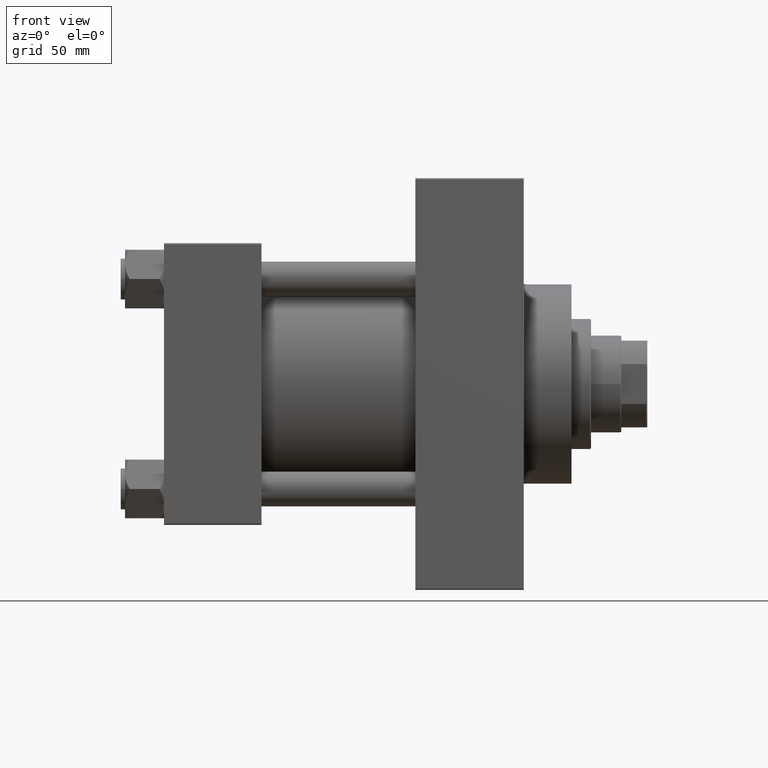
[diagram: clean part render]
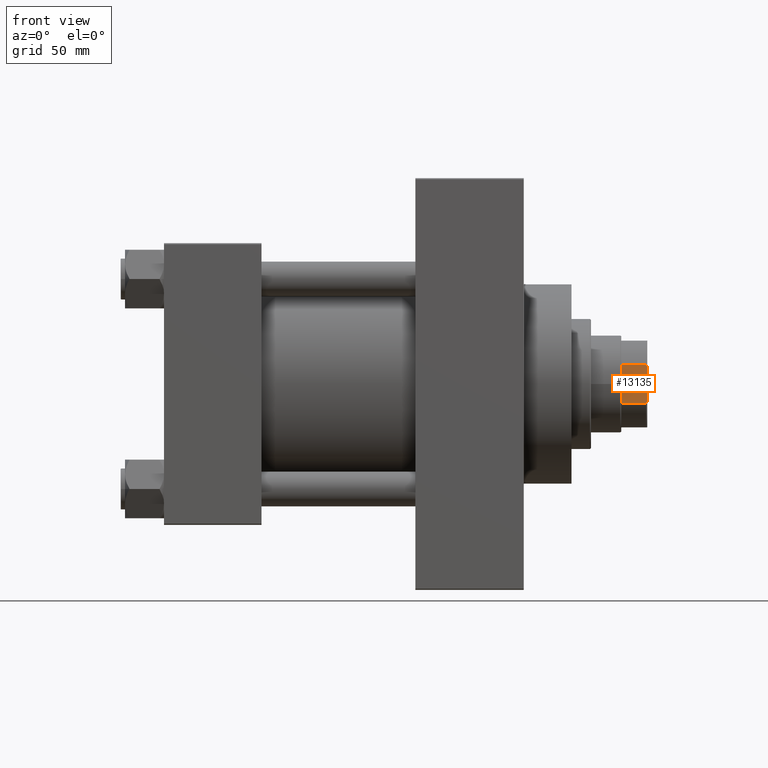
[diagram: same view with one face highlighted and labeled with its STEP entity id]
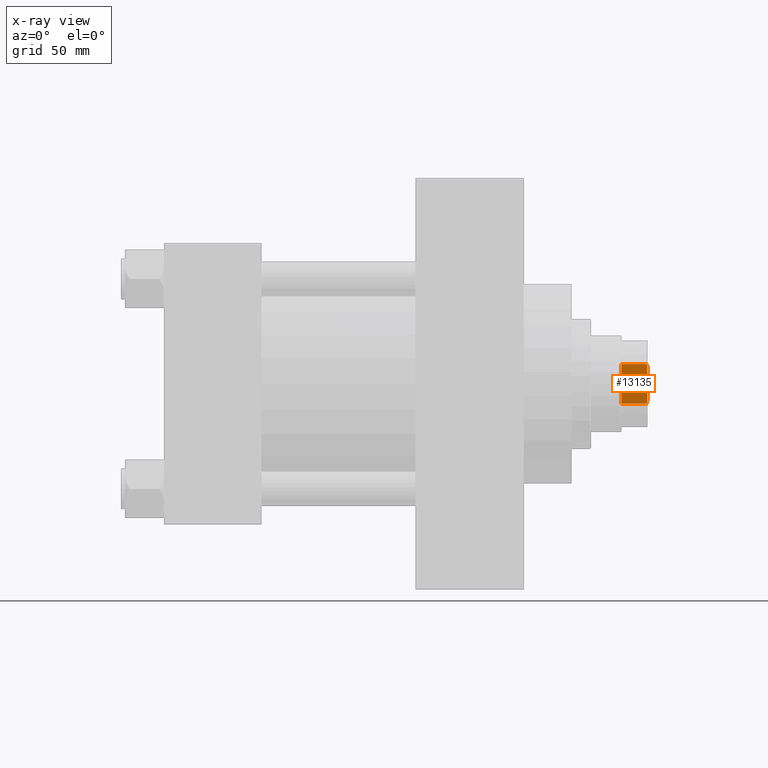
[diagram: x-ray of the same camera — body ghosted, the highlighted face saturated]
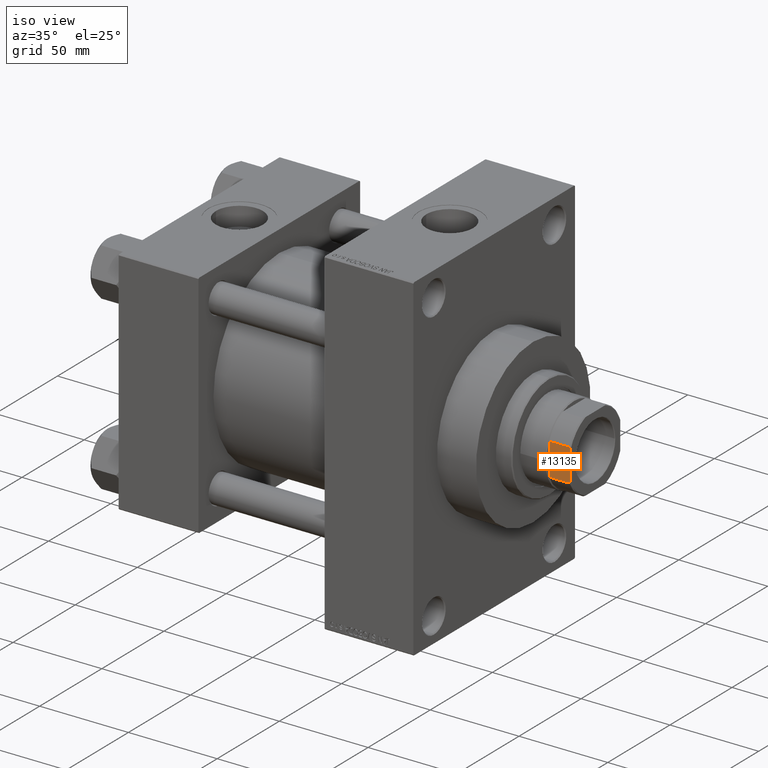
[diagram: same view with one face highlighted and labeled with its STEP entity id]
A machine part, front view. The second image highlights one B-rep face of the part: STEP entity #13135.
The next image is the same camera in x-ray: the body ghosted, the highlighted face saturated — about 0% of this face is hidden behind the body in this view.
A second angle (iso view) of the same face is appended — the face is thin or edge-on in the first view.
In plain terms, the highlighted planar face has unit normal (0, 1, 0).
Its self-contained STEP definition (entity closure, byte-faithful):
#482 = VERTEX_POINT ( 'NONE', #21089 ) ;
#824 = VECTOR ( 'NONE', #40967, 1000.000000000000000 ) ;
#1165 = PLANE ( 'NONE',  #47085 ) ;
#1406 = EDGE_CURVE ( 'NONE', #482, #37935, #25539, .T. ) ;
#2500 = VERTEX_POINT ( 'NONE', #32085 ) ;
#3349 = LINE ( 'NONE', #3860, #8420 ) ;
#3751 = CARTESIAN_POINT ( 'NONE',  ( 20.00000000000000000, -7.889866919029643100, 178.0000000000000284 ) ) ;
#3860 = CARTESIAN_POINT ( 'NONE',  ( 19.99999999999999289, -9.165151389911693869, -0.001000000000001000089 ) ) ;
#5212 = DIRECTION ( 'NONE',  ( -1.000000000000000000, -1.734723475976806848E-16, 0.000000000000000000 ) ) ;
#8420 = VECTOR ( 'NONE', #27044, 1000.000000000000000 ) ;
#8943 = EDGE_LOOP ( 'NONE', ( #12876, #15469, #36481, #24664, #36328, #48056 ) ) ;
#10509 = VECTOR ( 'NONE', #11046, 1000.000000000000000 ) ;
#11046 = DIRECTION ( 'NONE',  ( -0.000000000000000000, -0.000000000000000000, 1.000000000000000000 ) ) ;
#11940 = EDGE_CURVE ( 'NONE', #2500, #25290, #32033, .T. ) ;
#12876 = ORIENTED_EDGE ( 'NONE', *, *, #25544, .T. ) ;
#13066 = VECTOR ( 'NONE', #37343, 1000.000000000000000 ) ;
#13135 = ADVANCED_FACE ( 'NONE', ( #43236 ), #1165, .F. ) ;
#13651 = EDGE_CURVE ( 'NONE', #22081, #25290, #3349, .T. ) ;
#15469 = ORIENTED_EDGE ( 'NONE', *, *, #1406, .T. ) ;
#16798 = CARTESIAN_POINT ( 'NONE',  ( 19.99999999999999645, 20.00000000000000000, 178.0000000000000284 ) ) ;
#21089 = CARTESIAN_POINT ( 'NONE',  ( 19.99999999999999645, 9.165151389911683211, 177.5000000000000284 ) ) ;
#21324 = DIRECTION ( 'NONE',  ( 1.734723475976806848E-16, -1.000000000000000000, 0.000000000000000000 ) ) ;
#21404 = CARTESIAN_POINT ( 'NONE',  ( 19.99999999999999645, 9.165151389911683211, 177.5000000000000284 ) ) ;
#21746 = CARTESIAN_POINT ( 'NONE',  ( 19.99999999999999645, 20.00000000000000000, 166.0000000000000000 ) ) ;
#22081 = VERTEX_POINT ( 'NONE', #33356 ) ;
#24664 = ORIENTED_EDGE ( 'NONE', *, *, #11940, .T. ) ;
#25290 = VERTEX_POINT ( 'NONE', #39258 ) ;
#25539 = B_SPLINE_CURVE_WITH_KNOTS ( 'NONE', 3,
 ( #21404, #49062, #36998, #41529 ),
 .UNSPECIFIED., .F., .F.,
 ( 4, 4 ),
 ( 0.000000000000000000, 0.001369799431184188935 ),
 .UNSPECIFIED. ) ;
#25544 = EDGE_CURVE ( 'NONE', #47455, #482, #30181, .T. ) ;
#25616 = LINE ( 'NONE', #49011, #824 ) ;
#27044 = DIRECTION ( 'NONE',  ( -0.000000000000000000, -0.000000000000000000, 1.000000000000000000 ) ) ;
#28615 = CARTESIAN_POINT ( 'NONE',  ( 20.00000000000000000, 7.889866919029785208, 178.0000000000000284 ) ) ;
#30181 = LINE ( 'NONE', #45527, #10509 ) ;
#30313 = LINE ( 'NONE', #21746, #13066 ) ;
#31558 = EDGE_CURVE ( 'NONE', #2500, #37935, #25616, .T. ) ;
#32033 = B_SPLINE_CURVE_WITH_KNOTS ( 'NONE', 3,
 ( #3751, #41272, #49066, #45805 ),
 .UNSPECIFIED., .F., .F.,
 ( 4, 4 ),
 ( 1.734723475976807094E-18, 0.001369799431184337470 ),
 .UNSPECIFIED. ) ;
#32085 = CARTESIAN_POINT ( 'NONE',  ( 20.00000000000000000, -7.889866919029643100, 178.0000000000000284 ) ) ;
#33356 = CARTESIAN_POINT ( 'NONE',  ( 19.99999999999999289, -9.165151389911693869, 166.0000000000000000 ) ) ;
#34919 = EDGE_CURVE ( 'NONE', #22081, #47455, #30313, .T. ) ;
#35307 = CARTESIAN_POINT ( 'NONE',  ( 19.99999999999999645, 9.165151389911683211, 166.0000000000000000 ) ) ;
#36328 = ORIENTED_EDGE ( 'NONE', *, *, #13651, .F. ) ;
#36481 = ORIENTED_EDGE ( 'NONE', *, *, #31558, .F. ) ;
#36998 = CARTESIAN_POINT ( 'NONE',  ( 20.00000000000000000, 8.318618722654436581, 177.8426607129352703 ) ) ;
#37343 = DIRECTION ( 'NONE',  ( -1.734723475976807094E-16, 1.000000000000000000, -0.000000000000000000 ) ) ;
#37935 = VERTEX_POINT ( 'NONE', #28615 ) ;
#39258 = CARTESIAN_POINT ( 'NONE',  ( 19.99999999999999289, -9.165151389911693869, 177.5000000000000000 ) ) ;
#40967 = DIRECTION ( 'NONE',  ( -1.734723475976807094E-16, 1.000000000000000000, -0.000000000000000000 ) ) ;
#41272 = CARTESIAN_POINT ( 'NONE',  ( 20.00000000000000000, -8.318618722654344211, 177.8426607129352419 ) ) ;
#41529 = CARTESIAN_POINT ( 'NONE',  ( 20.00000000000000000, 7.889866919029785208, 178.0000000000000284 ) ) ;
#43236 = FACE_OUTER_BOUND ( 'NONE', #8943, .T. ) ;
#45527 = CARTESIAN_POINT ( 'NONE',  ( 19.99999999999999645, 9.165151389911683211, -0.001000000000001000089 ) ) ;
#45805 = CARTESIAN_POINT ( 'NONE',  ( 19.99999999999999289, -9.165151389911693869, 177.5000000000000000 ) ) ;
#47085 = AXIS2_PLACEMENT_3D ( 'NONE', #16798, #5212, #21324 ) ;
#47455 = VERTEX_POINT ( 'NONE', #35307 ) ;
#48056 = ORIENTED_EDGE ( 'NONE', *, *, #34919, .T. ) ;
#49011 = CARTESIAN_POINT ( 'NONE',  ( 19.99999999999999645, 20.00000000000000000, 178.0000000000000284 ) ) ;
#49062 = CARTESIAN_POINT ( 'NONE',  ( 19.99999999999999645, 8.743570658524372874, 177.6756296011924974 ) ) ;
#49066 = CARTESIAN_POINT ( 'NONE',  ( 20.00000000000000000, -8.743570658524330241, 177.6756296011924974 ) ) ;